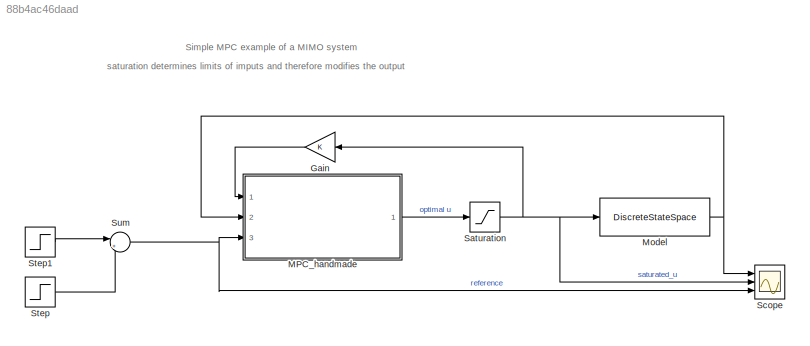
MODEL slx_88b4ac46daad
KIND model
CONFIG AbsTol = auto
CONFIG EnableMultiTasking = off
CONFIG FixedStep = 0.05
CONFIG MaxStep = auto
CONFIG MinStep = auto
CONFIG RelTol = 1e-3
CONFIG SampleTimeConstraint = Unconstrained
CONFIG SolverName = FixedStepDiscrete
CONFIG StartTime = 0.0
CONFIG StopTime = 10.0
WORKSPACE source: mxarray member
WORKSPACE Asim = [-0.0455 -0.0273 -0.0273 -0.0273 -0.0455 -0.0273 -0.0273 -0.0273 -0.0455]
BLOCK [Gain] Gain
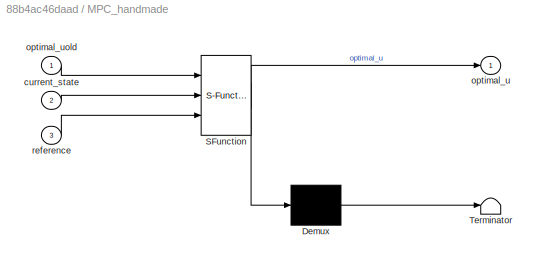
BLOCK [SubSystem] MPC_handmade
  ErrorFcn = Stateflow.Translate.translate
  PermitHierarchicalResolution = ExplicitOnly
  Ports = [3, 1]
  RequestExecContextInheritance = off
  SFBlockType = MATLAB Function
  TreatAsAtomicUnit = on
BLOCK [Demux] MPC_handmade/ Demux 
  Outputs = 1
  Ports = [1, 1]
BLOCK [S-Function] MPC_handmade/ SFunction 
  EnableBusSupport = on
  FunctionName = sf_sfun
  PortCounts = [3 2]
  Ports = [3, 2]
  SFcnIsStateOwnerBlock = off
  SFunctionDeploymentMode = off
  Tag = Stateflow S-Function 2
BLOCK [Terminator] MPC_handmade/ Terminator 
BLOCK [Inport] MPC_handmade/current_state
  Port = 2
BLOCK [Outport] MPC_handmade/optimal_u
BLOCK [Inport] MPC_handmade/optimal_uold
BLOCK [Inport] MPC_handmade/reference
  Port = 3
BLOCK [DiscreteStateSpace] Model
  A = [0.9977 -0.0014 -0.0014;-0.0014 0.9977 -0.0014;-0.0014 -0.0014 0.9977]
  B = [0.0113    0.0068    0.0068;\n    0.0068    0.0113    0.0068;\n    0.0068    0.0068    0.0113]
  C = [1 0 0;0 1 0;0 0 1]
  D = zeros(3,3)
  InitialCondition = [0 0 0]
  SampleTime = -1
BLOCK [Saturate] Saturation
  LowerLimit = -5
  UpperLimit = 10
BLOCK [Scope] Scope
  Floating = off
  NumInputPorts = 3
  Ports = [3]
  ScopeSpecificationString = Simulink.scopes.TimeScopeBlockCfg('CurrentConfiguration', extmgr.ConfigurationSet(extmgr.Configuration('Core','General UI',true),extmgr.Configuration('Core','Source UI',true),extmgr.Configuration('Sources','WiredSimulink',true),extmgr.Configuration('Visuals','Time Domain',true,'SerializedDisplays',{struct('MinYLimReal','-6.13201','MaxYLimReal','11.79245','YLabelReal','','MinYLimMag','0.00000','Max...<+1740ch>
BLOCK [Step] Step
  After = 0
  SampleTime = 0
  Time = 2
BLOCK [Step] Step1
  After = [2; 0 ;0]
  Before = [0; 0; 0]
  SampleTime = 0
BLOCK [Sum] Sum
  Inputs = |++
  Ports = [2, 1]
ANNOTATION (root): saturation determines limits of imputs and therefore modifies the output
ANNOTATION (root): Simple MPC example of a MIMO system
LINE Gain:1 -> MPC_handmade:1
LINE MPC_handmade:1 -> Saturation:1
NET Model:1 -> MPC_handmade:2, Scope:1
NET Saturation:1 -> Gain:1, Model:1, Scope:2
LINE Step1:1 -> Sum:1
LINE Step:1 -> Sum:2
NET Sum:1 -> MPC_handmade:3, Scope:3
note: NET lines group one-source signal fan-out (src -> all destinations, sorted); 1:1 wires keep LINE
CHART MPC_handmade states=1 transitions=1
  STATE_LABEL 'eML_blk_kernel()'
  STATE_LABEL 'SCRIPT:\nfunction optimal_u = MPCmimo_handmade(optimal_uold,current_state,reference)\nJ = [8 -3 -3; -3 8 -3; -3 -3 8];\nF = 0.2*eye(3);\nAp = -J\\F;\nBp = inv(J);\nCp = eye(3);\n%%% Discrete\nAp =[0.9977   -0.0014   -0.0014;\n   -0.0014    0.9977   -0.0014;\n   -0.0014   -0.0014    0.9977];\nBp =[0.0113    0.0068    0.0068;\n    0.0068    0.0113    0.0068;\n    0.0068    0.0068    0.0113];\n\nDp = zeros(3);\nNp = ...<+1446ch>'
CHART  states=0 transitions=0
